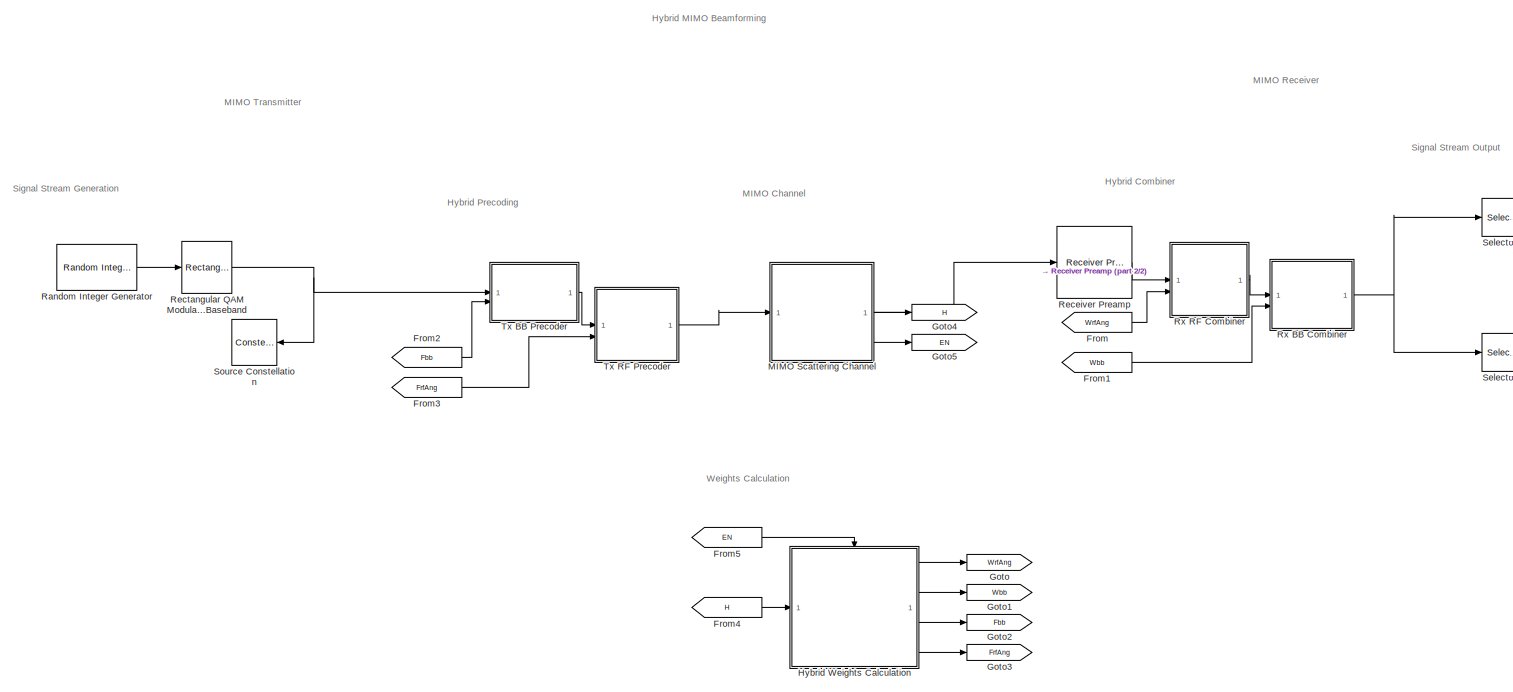
[diagram: root canvas - part 1/2, most of the canvas]
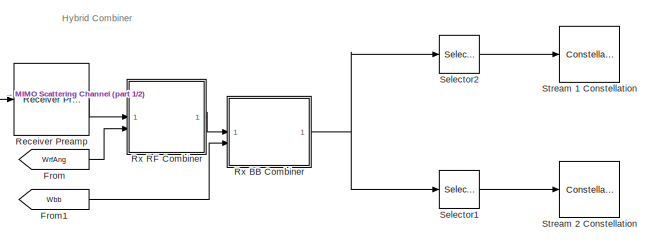
[diagram: root canvas - part 2/2, middle right region]
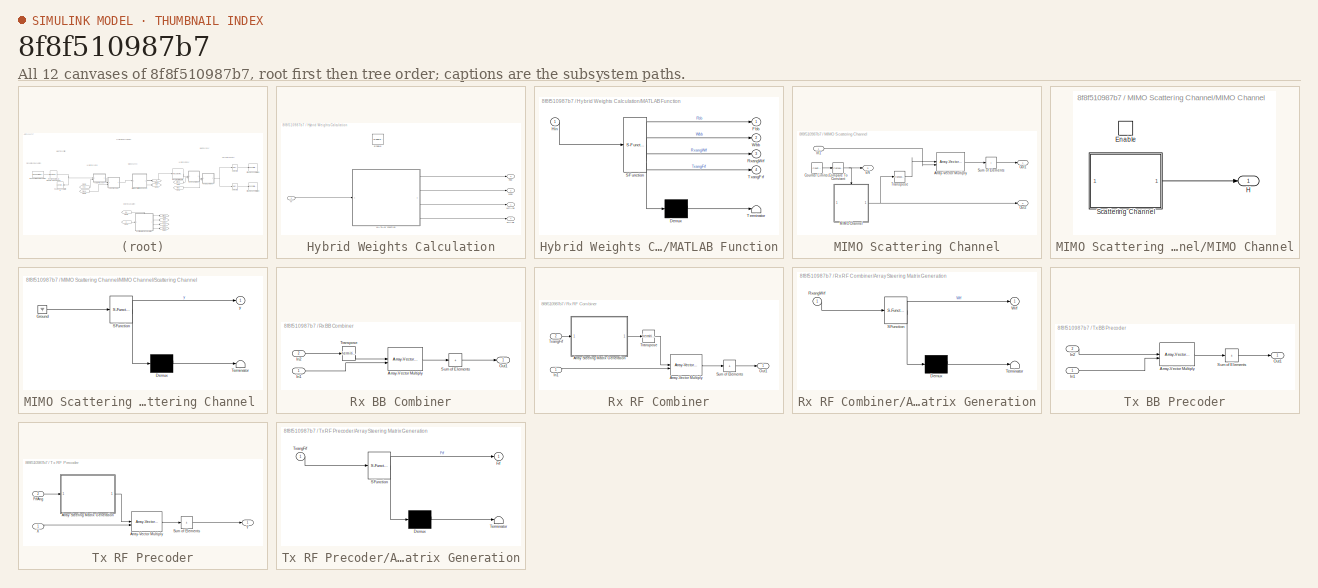
[diagram: thumbnail index - all 12 canvases of the model, root first then tree order]
MODEL slx_8f8f510987b7
KIND model
CONFIG AbsTol = auto
CONFIG EnableMultiTasking = off
CONFIG FixedStep = 1
CONFIG MaxStep = auto
CONFIG MinStep = auto
CONFIG PreLoadFcn = helperslexHybridBeamformingParam;
CONFIG RelTol = 1e-3
CONFIG SampleTimeConstraint = Unconstrained
CONFIG SolverName = FixedStepDiscrete
CONFIG StartTime = 0.0
CONFIG StopTime = inf
BLOCK [From] From
  GotoTag = WrfAng
BLOCK [From] From1
  GotoTag = Wbb
BLOCK [From] From2
  GotoTag = Fbb
BLOCK [From] From3
  GotoTag = FrfAng
BLOCK [From] From4
  GotoTag = H
BLOCK [From] From5
  GotoTag = EN
BLOCK [Goto] Goto
  GotoTag = WrfAng
BLOCK [Goto] Goto1
  GotoTag = Wbb
BLOCK [Goto] Goto2
  GotoTag = Fbb
BLOCK [Goto] Goto3
  GotoTag = FrfAng
BLOCK [Goto] Goto4
  GotoTag = H
BLOCK [Goto] Goto5
  GotoTag = EN
BLOCK [SubSystem] Hybrid Weights Calculation
BLOCK [EnablePort] Hybrid Weights Calculation/Enable
  PropagateVarSize = During execution
BLOCK [Outport] Hybrid Weights Calculation/Fbb
  Port = 3
  VectorParamsAs1DForOutWhenUnconnected = off
BLOCK [Outport] Hybrid Weights Calculation/FrfAng
  Port = 4
  VectorParamsAs1DForOutWhenUnconnected = off
BLOCK [Inport] Hybrid Weights Calculation/H
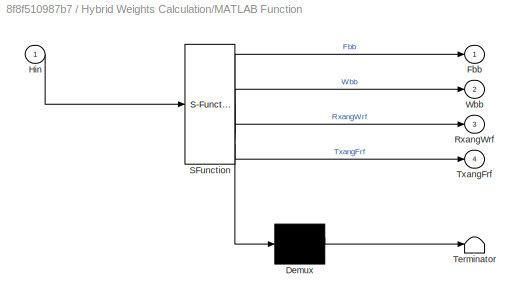
BLOCK [SubSystem] Hybrid Weights Calculation/MATLAB Function
  ErrorFcn = Stateflow.Translate.translate
  PermitHierarchicalResolution = ExplicitOnly
  SFBlockType = MATLAB Function
  TreatAsAtomicUnit = on
BLOCK [Demux] Hybrid Weights Calculation/MATLAB Function/ Demux 
  Outputs = 1
BLOCK [S-Function] Hybrid Weights Calculation/MATLAB Function/ SFunction 
  EnableBusSupport = off
  FunctionName = sf_sfun
  Parameters = Algorithm,NrRF,Ns,NtRF,noisevar,rxangW,rxpos,txangF,txpos
  PortCounts = [1 5]
  SFcnIsStateOwnerBlock = off
  SFunctionDeploymentMode = off
  Tag = Stateflow S-Function 2
BLOCK [Terminator] Hybrid Weights Calculation/MATLAB Function/ Terminator 
BLOCK [Outport] Hybrid Weights Calculation/MATLAB Function/Fbb
  VectorParamsAs1DForOutWhenUnconnected = off
BLOCK [Inport] Hybrid Weights Calculation/MATLAB Function/Hin
BLOCK [Outport] Hybrid Weights Calculation/MATLAB Function/RxangWrf
  Port = 3
  VectorParamsAs1DForOutWhenUnconnected = off
BLOCK [Outport] Hybrid Weights Calculation/MATLAB Function/TxangFrf
  Port = 4
  VectorParamsAs1DForOutWhenUnconnected = off
BLOCK [Outport] Hybrid Weights Calculation/MATLAB Function/Wbb
  Port = 2
  VectorParamsAs1DForOutWhenUnconnected = off
BLOCK [Outport] Hybrid Weights Calculation/Wbb
  Port = 2
  VectorParamsAs1DForOutWhenUnconnected = off
BLOCK [Outport] Hybrid Weights Calculation/WrfAng
  VectorParamsAs1DForOutWhenUnconnected = off
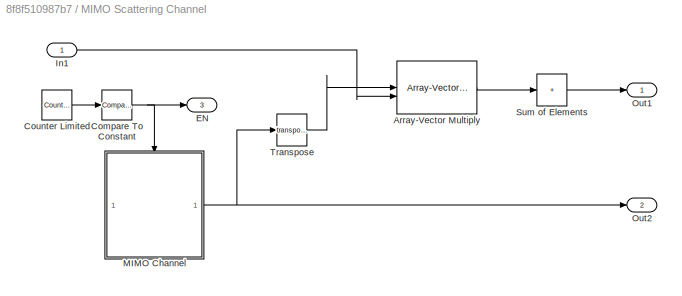
BLOCK [SubSystem] MIMO Scattering Channel
BLOCK [Reference] MIMO Scattering Channel/Array-Vector Multiply  REF=dspmtrx3/Array-Vector
Multiply
  SourceBlock = dspmtrx3/Array-Vector\nMultiply
  SourceType = Array-Vector Multiply
BLOCK [Reference] MIMO Scattering Channel/Compare To Constant  REF=simulink/Logic and Bit
Operations/Compare
To Constant
  SourceBlock = simulink/Logic and Bit\nOperations/Compare\nTo Constant
  SourceType = Compare To Constant
BLOCK [Reference] MIMO Scattering Channel/Counter Limited  REF=simulink/Sources/Counter
Limited
  SourceBlock = simulink/Sources/Counter\nLimited
  SourceType = Counter Limited
BLOCK [Outport] MIMO Scattering Channel/EN
  Port = 3
  VectorParamsAs1DForOutWhenUnconnected = off
BLOCK [Inport] MIMO Scattering Channel/In1
BLOCK [SubSystem] MIMO Scattering Channel/MIMO Channel
BLOCK [EnablePort] MIMO Scattering Channel/MIMO Channel/Enable
  PropagateVarSize = During execution
BLOCK [Outport] MIMO Scattering Channel/MIMO Channel/H
  VectorParamsAs1DForOutWhenUnconnected = off
BLOCK [SubSystem] MIMO Scattering Channel/MIMO Channel/Scattering Channel 
  ErrorFcn = Stateflow.Translate.translate
  PermitHierarchicalResolution = ExplicitOnly
  SFBlockType = MATLAB Function
  TreatAsAtomicUnit = on
BLOCK [Demux] MIMO Scattering Channel/MIMO Channel/Scattering Channel / Demux 
  Outputs = 1
BLOCK [Ground] MIMO Scattering Channel/MIMO Channel/Scattering Channel / Ground 
BLOCK [S-Function] MIMO Scattering Channel/MIMO Channel/Scattering Channel / SFunction 
  EnableBusSupport = off
  FunctionName = sf_sfun
  Parameters = rxpos,txpos
  PortCounts = [1 2]
  SFcnIsStateOwnerBlock = off
  SFunctionDeploymentMode = off
  Tag = Stateflow S-Function 13
BLOCK [Terminator] MIMO Scattering Channel/MIMO Channel/Scattering Channel / Terminator 
BLOCK [Outport] MIMO Scattering Channel/MIMO Channel/Scattering Channel /y
  VectorParamsAs1DForOutWhenUnconnected = off
BLOCK [Outport] MIMO Scattering Channel/Out1
  VectorParamsAs1DForOutWhenUnconnected = off
BLOCK [Outport] MIMO Scattering Channel/Out2
  Port = 2
  VectorParamsAs1DForOutWhenUnconnected = off
BLOCK [Sum] MIMO Scattering Channel/Sum of Elements
  CollapseDim = 2
  CollapseMode = Specified dimension
  IconShape = rectangular
  Inputs = +
BLOCK [Math] MIMO Scattering Channel/Transpose
  Operator = transpose
  SignedPower = on
BLOCK [Reference] Random Integer Generator  REF=commrandsrc3/Random Integer
Generator
  SourceBlock = commrandsrc3/Random Integer\nGenerator
  SourceType = Random Integer Generator
BLOCK [Reference] Receiver Preamp  REF=phasedtxrxlib/Receiver Preamp
  SourceBlock = phasedtxrxlib/Receiver Preamp
  SourceType = phased.internal.SimulinkReceiverPreamp
BLOCK [Reference] Rectangular QAM Modulator Baseband  REF=commdigbbndam3/Rectangular QAM
Modulator
Baseband
  SourceBlock = commdigbbndam3/Rectangular QAM\nModulator\nBaseband
  SourceType = Rectangular QAM Modulator Baseband
BLOCK [SubSystem] Rx BB Combiner
BLOCK [Reference] Rx BB Combiner/Array-Vector Multiply  REF=dspmtrx3/Array-Vector
Multiply
  SourceBlock = dspmtrx3/Array-Vector\nMultiply
  SourceType = Array-Vector Multiply
BLOCK [Inport] Rx BB Combiner/In1
BLOCK [Inport] Rx BB Combiner/In2
  Port = 2
BLOCK [Outport] Rx BB Combiner/Out1
  VectorParamsAs1DForOutWhenUnconnected = off
BLOCK [Sum] Rx BB Combiner/Sum of Elements
  CollapseDim = 2
  CollapseMode = Specified dimension
  IconShape = rectangular
  Inputs = +
BLOCK [Math] Rx BB Combiner/Transpose
  Operator = hermitian
  SignedPower = on
BLOCK [SubSystem] Rx RF Combiner
BLOCK [SubSystem] Rx RF Combiner/Array Steering Matrix Generation
  ErrorFcn = Stateflow.Translate.translate
  PermitHierarchicalResolution = ExplicitOnly
  SFBlockType = MATLAB Function
  TreatAsAtomicUnit = on
BLOCK [Demux] Rx RF Combiner/Array Steering Matrix Generation/ Demux 
  Outputs = 1
BLOCK [S-Function] Rx RF Combiner/Array Steering Matrix Generation/ SFunction 
  EnableBusSupport = off
  FunctionName = sf_sfun
  Parameters = RxPos
  PortCounts = [1 2]
  SFcnIsStateOwnerBlock = off
  SFunctionDeploymentMode = off
  Tag = Stateflow S-Function 1
BLOCK [Terminator] Rx RF Combiner/Array Steering Matrix Generation/ Terminator 
BLOCK [Inport] Rx RF Combiner/Array Steering Matrix Generation/RxangWrf
BLOCK [Outport] Rx RF Combiner/Array Steering Matrix Generation/Wrf
  VectorParamsAs1DForOutWhenUnconnected = off
BLOCK [Reference] Rx RF Combiner/Array-Vector Multiply  REF=dspmtrx3/Array-Vector
Multiply
  SourceBlock = dspmtrx3/Array-Vector\nMultiply
  SourceType = Array-Vector Multiply
BLOCK [Inport] Rx RF Combiner/In1
BLOCK [Outport] Rx RF Combiner/Out1
  VectorParamsAs1DForOutWhenUnconnected = off
BLOCK [Sum] Rx RF Combiner/Sum of Elements
  CollapseDim = 2
  CollapseMode = Specified dimension
  IconShape = rectangular
  Inputs = +
BLOCK [Math] Rx RF Combiner/Transpose
  Operator = hermitian
  SignedPower = on
BLOCK [Inport] Rx RF Combiner/TxangFrf
  Port = 2
BLOCK [Selector] Selector1
  IndexOptions = Index vector (dialog)
  Indices = 2
  InputPortWidth = paramHybridBF.Ns
  OutputSizes = 1
BLOCK [Selector] Selector2
  IndexOptions = Index vector (dialog)
  Indices = [1]
  InputPortWidth = paramHybridBF.Ns
  OutputSizes = 1
BLOCK [ConstellationDiagram] Source Constellation
  DefaultConfigurationName = comm.scopes.ConstellationDiagramBlockCfg
  GraphicalSettings = {"GraphicalSettings":{"Style":{}}}
  ReferenceConstellation = {[-10 -10]}
  ScopeFrameLocation = window
  ShowReferenceConstellation = off
  SymbolsToDisplay = paramHybridBF.NTxSym
  SymbolsToDisplaySource = Property
  WasSavedAsWebScope = on
  WindowPosition = [298.000000,334.000000,438.000000,299.000000,]
  XLimits = [-2 2]
  YLimits = [-2 2]
BLOCK [ConstellationDiagram] Stream 1 Constellation
  DefaultConfigurationName = comm.scopes.ConstellationDiagramBlockCfg
  GraphicalSettings = {"GraphicalSettings":{"Style":{}}}
  ReferenceConstellation = {[-1+1i              -1+0.33333i              -1-0.33333i                    -1-1i              -0.33333+1i        -0.33333+0.33333i        -0.33333-0.33333i              -0.33333-1i               0.33333+1i         0.33333+0.33333i         0.33333-0.33333i               0.33333-1i                     1+1i               1+0.33333i               1-0.33333i                     1-1i]}
  ScopeFrameLocation = window
  SymbolsToDisplay = 1000
  SymbolsToDisplaySource = Property
  WasSavedAsWebScope = on
  WindowPosition = [755.000000,331.000000,440.000000,303.000000,]
  XLimits = [-2 2]
  YLimits = [-2 2]
BLOCK [ConstellationDiagram] Stream 2 Constellation
  DefaultConfigurationName = comm.scopes.ConstellationDiagramBlockCfg
  GraphicalSettings = {"GraphicalSettings":{"Style":{}}}
  ReferenceConstellation = {[-1+1i              -1+0.33333i              -1-0.33333i                    -1-1i              -0.33333+1i        -0.33333+0.33333i        -0.33333-0.33333i              -0.33333-1i               0.33333+1i         0.33333+0.33333i         0.33333-0.33333i               0.33333-1i                     1+1i               1+0.33333i               1-0.33333i                     1-1i]}
  ScopeFrameLocation = window
  SymbolsToDisplay = 1000
  SymbolsToDisplaySource = Property
  WasSavedAsWebScope = on
  WindowPosition = [788.000000,213.000000,485.000000,463.000000,]
  XLimits = [-2 2]
  YLimits = [-2 2]
BLOCK [SubSystem] Tx BB Precoder
BLOCK [Reference] Tx BB Precoder/Array-Vector Multiply  REF=dspmtrx3/Array-Vector
Multiply
  SourceBlock = dspmtrx3/Array-Vector\nMultiply
  SourceType = Array-Vector Multiply
BLOCK [Inport] Tx BB Precoder/In1
BLOCK [Inport] Tx BB Precoder/In2
  Port = 2
BLOCK [Outport] Tx BB Precoder/Out1
  VectorParamsAs1DForOutWhenUnconnected = off
BLOCK [Sum] Tx BB Precoder/Sum of Elements
  CollapseDim = 2
  CollapseMode = Specified dimension
  IconShape = rectangular
  Inputs = +
BLOCK [SubSystem] Tx RF Precoder
BLOCK [SubSystem] Tx RF Precoder/Array Steering Matrix Generation
  ErrorFcn = Stateflow.Translate.translate
  PermitHierarchicalResolution = ExplicitOnly
  SFBlockType = MATLAB Function
  TreatAsAtomicUnit = on
BLOCK [Demux] Tx RF Precoder/Array Steering Matrix Generation/ Demux 
  Outputs = 1
BLOCK [S-Function] Tx RF Precoder/Array Steering Matrix Generation/ SFunction 
  EnableBusSupport = off
  FunctionName = sf_sfun
  Parameters = TxPos
  PortCounts = [1 2]
  SFcnIsStateOwnerBlock = off
  SFunctionDeploymentMode = off
  Tag = Stateflow S-Function 6
BLOCK [Terminator] Tx RF Precoder/Array Steering Matrix Generation/ Terminator 
BLOCK [Outport] Tx RF Precoder/Array Steering Matrix Generation/Frf
  VectorParamsAs1DForOutWhenUnconnected = off
BLOCK [Inport] Tx RF Precoder/Array Steering Matrix Generation/TxangFrf
BLOCK [Reference] Tx RF Precoder/Array-Vector Multiply  REF=dspmtrx3/Array-Vector
Multiply
  SourceBlock = dspmtrx3/Array-Vector\nMultiply
  SourceType = Array-Vector Multiply
BLOCK [Inport] Tx RF Precoder/FrfAng
  Port = 2
BLOCK [Sum] Tx RF Precoder/Sum of Elements
  CollapseDim = 2
  CollapseMode = Specified dimension
  IconShape = rectangular
  Inputs = +
BLOCK [Inport] Tx RF Precoder/X
BLOCK [Outport] Tx RF Precoder/Y
  VectorParamsAs1DForOutWhenUnconnected = off
ANNOTATION (root): Hybrid MIMO Beamforming
ANNOTATION (root): Weights Calculation
ANNOTATION (root): Signal Stream Output
ANNOTATION (root): Hybrid Combiner
ANNOTATION (root): Hybrid Precoding
ANNOTATION (root): Signal Stream Generation
ANNOTATION (root): MIMO Channel
ANNOTATION (root): MIMO Receiver
ANNOTATION (root): MIMO Transmitter
LINE From1:1 -> Rx BB Combiner:2
LINE From2:1 -> Tx BB Precoder:2
LINE From3:1 -> Tx RF Precoder:2
LINE From4:1 -> Hybrid Weights Calculation:1
LINE From5:1 -> Hybrid Weights Calculation:enable
LINE From:1 -> Rx RF Combiner:2
LINE Hybrid Weights Calculation/H:1 -> Hybrid Weights Calculation/MATLAB Function:1
LINE Hybrid Weights Calculation/MATLAB Function:1 -> Hybrid Weights Calculation/Fbb:1
LINE Hybrid Weights Calculation/MATLAB Function:2 -> Hybrid Weights Calculation/Wbb:1
LINE Hybrid Weights Calculation/MATLAB Function:3 -> Hybrid Weights Calculation/WrfAng:1
LINE Hybrid Weights Calculation/MATLAB Function:4 -> Hybrid Weights Calculation/FrfAng:1
LINE Hybrid Weights Calculation:1 -> Goto:1
LINE Hybrid Weights Calculation:2 -> Goto1:1
LINE Hybrid Weights Calculation:3 -> Goto2:1
LINE Hybrid Weights Calculation:4 -> Goto3:1
LINE MIMO Scattering Channel/Array-Vector Multiply:1 -> MIMO Scattering Channel/Sum of Elements:1
NET MIMO Scattering Channel/Compare To Constant:1 -> MIMO Scattering Channel/EN:1, MIMO Scattering Channel/MIMO Channel:enable
LINE MIMO Scattering Channel/Counter Limited:1 -> MIMO Scattering Channel/Compare To Constant:1
LINE MIMO Scattering Channel/In1:1 -> MIMO Scattering Channel/Array-Vector Multiply:2
LINE MIMO Scattering Channel/MIMO Channel/Scattering Channel :1 -> MIMO Scattering Channel/MIMO Channel/H:1
NET MIMO Scattering Channel/MIMO Channel:1 -> MIMO Scattering Channel/Out2:1, MIMO Scattering Channel/Transpose:1
LINE MIMO Scattering Channel/Sum of Elements:1 -> MIMO Scattering Channel/Out1:1
LINE MIMO Scattering Channel/Transpose:1 -> MIMO Scattering Channel/Array-Vector Multiply:1
LINE MIMO Scattering Channel:1 -> Receiver Preamp:1
LINE MIMO Scattering Channel:2 -> Goto4:1
LINE MIMO Scattering Channel:3 -> Goto5:1
LINE Random Integer Generator:1 -> Rectangular QAM Modulator Baseband:1
LINE Receiver Preamp:1 -> Rx RF Combiner:1
NET Rectangular QAM Modulator Baseband:1 -> Source Constellation:1, Tx BB Precoder:1
LINE Rx BB Combiner/Array-Vector Multiply:1 -> Rx BB Combiner/Sum of Elements:1
LINE Rx BB Combiner/In1:1 -> Rx BB Combiner/Array-Vector Multiply:2
LINE Rx BB Combiner/In2:1 -> Rx BB Combiner/Transpose:1
LINE Rx BB Combiner/Sum of Elements:1 -> Rx BB Combiner/Out1:1
LINE Rx BB Combiner/Transpose:1 -> Rx BB Combiner/Array-Vector Multiply:1
NET Rx BB Combiner:1 -> Selector1:1, Selector2:1
LINE Rx RF Combiner/Array Steering Matrix Generation:1 -> Rx RF Combiner/Transpose:1
LINE Rx RF Combiner/Array-Vector Multiply:1 -> Rx RF Combiner/Sum of Elements:1
LINE Rx RF Combiner/In1:1 -> Rx RF Combiner/Array-Vector Multiply:2
LINE Rx RF Combiner/Sum of Elements:1 -> Rx RF Combiner/Out1:1
LINE Rx RF Combiner/Transpose:1 -> Rx RF Combiner/Array-Vector Multiply:1
LINE Rx RF Combiner/TxangFrf:1 -> Rx RF Combiner/Array Steering Matrix Generation:1
LINE Rx RF Combiner:1 -> Rx BB Combiner:1
LINE Selector1:1 -> Stream 2 Constellation:1
LINE Selector2:1 -> Stream 1 Constellation:1
LINE Tx BB Precoder/Array-Vector Multiply:1 -> Tx BB Precoder/Sum of Elements:1
LINE Tx BB Precoder/In1:1 -> Tx BB Precoder/Array-Vector Multiply:2
LINE Tx BB Precoder/In2:1 -> Tx BB Precoder/Array-Vector Multiply:1
LINE Tx BB Precoder/Sum of Elements:1 -> Tx BB Precoder/Out1:1
LINE Tx BB Precoder:1 -> Tx RF Precoder:1
LINE Tx RF Precoder/Array Steering Matrix Generation:1 -> Tx RF Precoder/Array-Vector Multiply:1
LINE Tx RF Precoder/Array-Vector Multiply:1 -> Tx RF Precoder/Sum of Elements:1
LINE Tx RF Precoder/FrfAng:1 -> Tx RF Precoder/Array Steering Matrix Generation:1
LINE Tx RF Precoder/Sum of Elements:1 -> Tx RF Precoder/Y:1
LINE Tx RF Precoder/X:1 -> Tx RF Precoder/Array-Vector Multiply:2
LINE Tx RF Precoder:1 -> MIMO Scattering Channel:1
note: NET lines group one-source signal fan-out (src -> all destinations, sorted); 1:1 wires keep LINE
CHART Rx RF Combiner/Array Steering Matrix Generation states=1 transitions=1
  STATE_LABEL 'eML_blk_kernel()'
  STATE_LABEL 'SCRIPT:\nfunction Wrf = fsteering_rx(RxangWrf,RxPos)\n% Nr = size(RxPos,2);\n% aa=ones(2,NrRF);\n% arr=complex(zeros(Nr,NrRF));\n% aa(:,1:NrRF)=RxangWrf(:,1:NrRF);\n% \n% for i=1:NrRF\n%     ang=aa(:,i);\n%     arr(:,i)=steervec(RxPos,ang(:,1));\n% end\n% \n% Wrf = arr;\n\nWrf = steervec(RxPos,RxangWrf);'
CHART Hybrid Weights Calculation/MATLAB Function states=1 transitions=1
  STATE_LABEL 'eML_blk_kernel()'
  STATE_LABEL "SCRIPT:\nfunction [Fbb,Wbb, RxangWrf, TxangFrf] = hybridbfweights(Hin,NtRF, NrRF, Ns, txangF, rxangW, txpos, rxpos, noisevar, Algorithm)\n\nif Algorithm==1  % QHCB\n    H=Hin.';\n    [~,~,v] = svd(H);\n    [Nr,Nt] = size(H);\n    Fopt = v(:,1:Ns);\n    TxangFrf=zeros(2,NtRF);\n    RxangWrf=zeros(2,NrRF);\n    \n    Frf = complex(zeros(Nt,NtRF));\n    %Fbb = complex(zeros(NtRF,Ns));\n    Fres = complex(zeros(Nt...<+3476ch>"
CHART Tx RF Precoder/Array Steering Matrix Generation states=1 transitions=1
  STATE_LABEL 'eML_blk_kernel()'
  STATE_LABEL 'SCRIPT:\nfunction Frf = fsteering(TxangFrf,TxPos)\n\nFrf = steervec(TxPos,TxangFrf);'
CHART MIMO Scattering Channel/MIMO Channel/Scattering Channel  states=1 transitions=1
  STATE_LABEL 'eML_blk_kernel()'
  STATE_LABEL 'SCRIPT:\nfunction y  = fcn(txpos, rxpos)\n\nrng(2019);           % Random Seed \nNcl = 6;\nNray = 8;\nNscatter = Nray*Ncl;\nangspread = 5;\n\n% compute randomly placed scatterer clusters\ntxclang = [rand(1,Ncl)*60-30;rand(1,Ncl)*20-10];          % Azimuth from -30 degree to 30 degree.  Elevaton -10 degree to 10 degree.  \nrxclang = [rand(1,Ncl)*120-60;rand(1,Ncl)*70-35];         % Make the cluster angle to R...<+722ch>'
CHART  states=0 transitions=0
CHART  states=0 transitions=0
CHART  states=0 transitions=0
CHART  states=0 transitions=0
